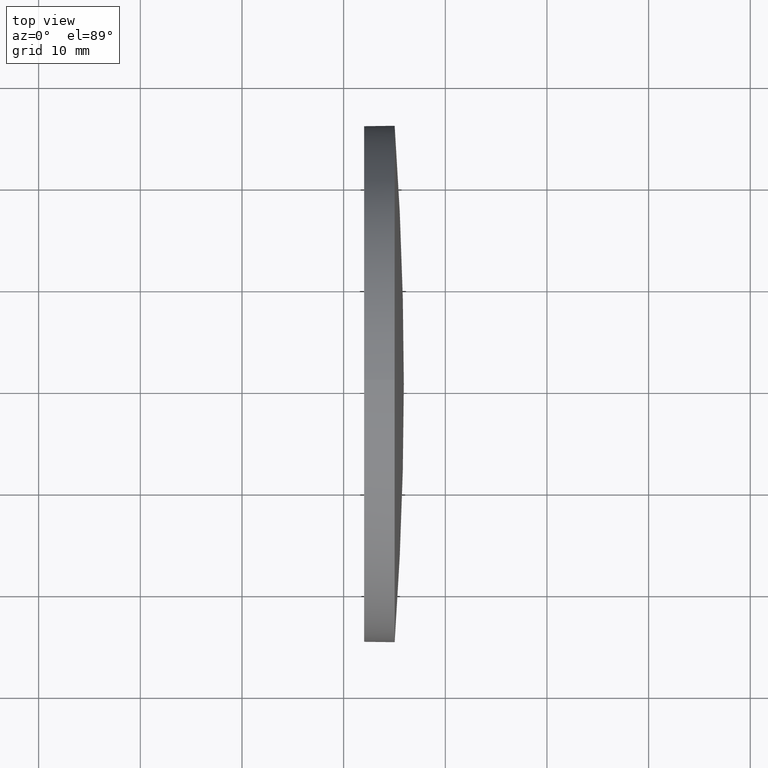
[diagram: clean part render]
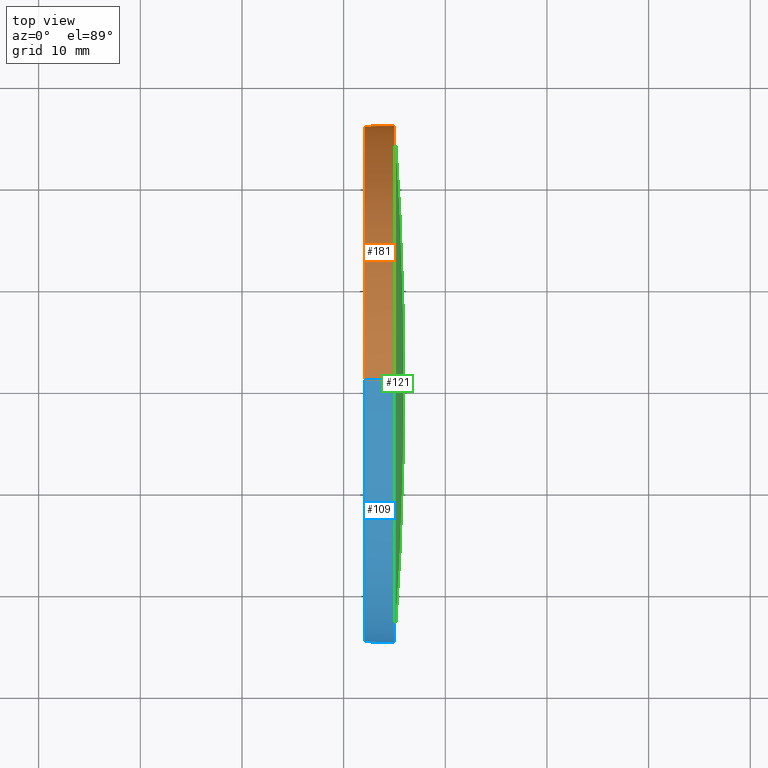
[diagram: same view with three faces highlighted in distinct colors, each labeled with its STEP entity id]
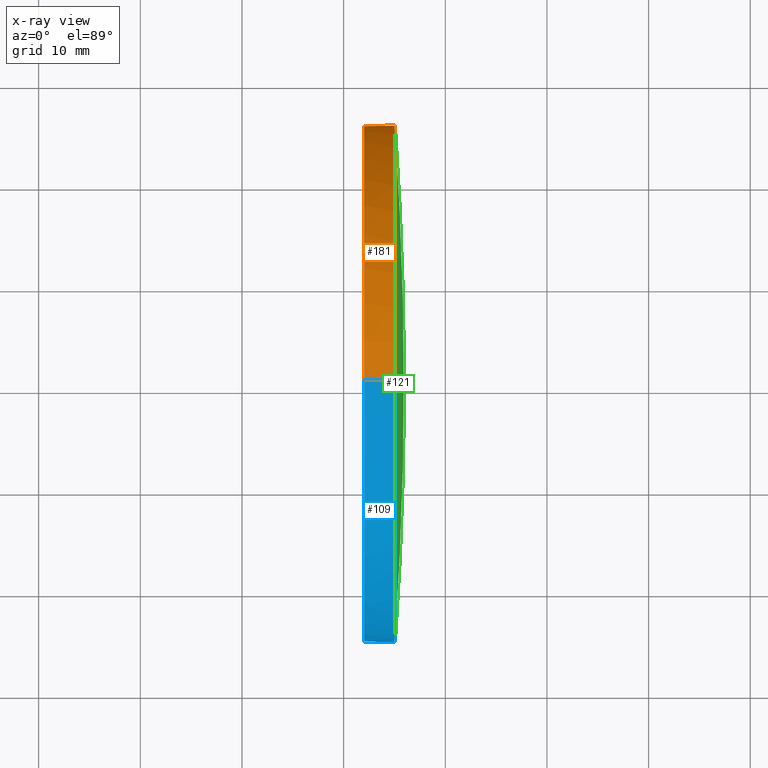
[diagram: x-ray of the same camera — body ghosted, the three highlighted faces saturated]
A machine part, top view with three faces highlighted in distinct colors.
The next image is the same camera in x-ray (body ghosted, the three faces saturated) — at least one of them is partly hidden behind the body in this view.
Their STEP definitions:

[orange] entity #181 — the highlighted cylindrical surface (partial cylindrical patch) has radius 25.4 mm, axis along (-1, -0, -0).
#2 = DIRECTION ( 'NONE',  ( -1.000000000000000000, -0.0000000000000000000, -0.0000000000000000000 ) ) ;
#5 = VERTEX_POINT ( 'NONE', #83 ) ;
#6 = AXIS2_PLACEMENT_3D ( 'NONE', #186, #120, #164 ) ;
#7 = CARTESIAN_POINT ( 'NONE',  ( 235.0208200792423800, 130.4671098528243900, 0.0000000000000000000 ) ) ;
#17 = VERTEX_POINT ( 'NONE', #159 ) ;
#22 = ORIENTED_EDGE ( 'NONE', *, *, #151, .F. ) ;
#24 = DIRECTION ( 'NONE',  ( 0.0000000000000000000, 0.0000000000000000000, 1.000000000000000000 ) ) ;
#25 = ORIENTED_EDGE ( 'NONE', *, *, #110, .F. ) ;
#33 = VERTEX_POINT ( 'NONE', #173 ) ;
#35 = CIRCLE ( 'NONE', #81, 25.40000000000000600 ) ;
#36 = VECTOR ( 'NONE', #2, 1000.000000000000000 ) ;
#38 = LINE ( 'NONE', #176, #97 ) ;
#41 = CARTESIAN_POINT ( 'NONE',  ( 235.0208200792423800, 130.4671098528243900, 25.40000000000000600 ) ) ;
#58 = CYLINDRICAL_SURFACE ( 'NONE', #6, 25.40000000000000600 ) ;
#63 = DIRECTION ( 'NONE',  ( 0.0000000000000000000, 0.0000000000000000000, 1.000000000000000000 ) ) ;
#66 = CARTESIAN_POINT ( 'NONE',  ( 232.0208200792423800, 130.4671098528243900, 0.0000000000000000000 ) ) ;
#68 = VERTEX_POINT ( 'NONE', #41 ) ;
#69 = EDGE_CURVE ( 'NONE', #68, #5, #88, .T. ) ;
#72 = AXIS2_PLACEMENT_3D ( 'NONE', #66, #177, #63 ) ;
#73 = AXIS2_PLACEMENT_3D ( 'NONE', #7, #172, #24 ) ;
#81 = AXIS2_PLACEMENT_3D ( 'NONE', #125, #156, #98 ) ;
#83 = CARTESIAN_POINT ( 'NONE',  ( 235.0208200792423800, 155.8671098528243700, 0.0000000000000000000 ) ) ;
#84 = DIRECTION ( 'NONE',  ( -1.000000000000000000, -0.0000000000000000000, -0.0000000000000000000 ) ) ;
#86 = CARTESIAN_POINT ( 'NONE',  ( 235.0208200792423800, 130.4671098528243900, -25.40000000000000600 ) ) ;
#88 = CIRCLE ( 'NONE', #73, 25.40000000000000600 ) ;
#92 = CIRCLE ( 'NONE', #72, 25.40000000000000600 ) ;
#96 = EDGE_CURVE ( 'NONE', #5, #165, #35, .T. ) ;
#97 = VECTOR ( 'NONE', #84, 1000.000000000000000 ) ;
#98 = DIRECTION ( 'NONE',  ( 0.0000000000000000000, 0.0000000000000000000, 1.000000000000000000 ) ) ;
#102 = FACE_OUTER_BOUND ( 'NONE', #153, .T. ) ;
#108 = ORIENTED_EDGE ( 'NONE', *, *, #96, .T. ) ;
#110 = EDGE_CURVE ( 'NONE', #68, #17, #38, .T. ) ;
#119 = LINE ( 'NONE', #162, #36 ) ;
#120 = DIRECTION ( 'NONE',  ( -1.000000000000000000, -0.0000000000000000000, -0.0000000000000000000 ) ) ;
#123 = ORIENTED_EDGE ( 'NONE', *, *, #160, .T. ) ;
#125 = CARTESIAN_POINT ( 'NONE',  ( 235.0208200792423800, 130.4671098528243900, 0.0000000000000000000 ) ) ;
#135 = ORIENTED_EDGE ( 'NONE', *, *, #69, .T. ) ;
#151 = EDGE_CURVE ( 'NONE', #17, #33, #92, .T. ) ;
#153 = EDGE_LOOP ( 'NONE', ( #108, #123, #22, #25, #135 ) ) ;
#156 = DIRECTION ( 'NONE',  ( -1.000000000000000000, -0.0000000000000000000, -0.0000000000000000000 ) ) ;
#159 = CARTESIAN_POINT ( 'NONE',  ( 232.0208200792423800, 130.4671098528243900, 25.40000000000000600 ) ) ;
#160 = EDGE_CURVE ( 'NONE', #165, #33, #119, .T. ) ;
#162 = CARTESIAN_POINT ( 'NONE',  ( 220.3307464569769000, 130.4671098528243900, -25.40000000000000600 ) ) ;
#164 = DIRECTION ( 'NONE',  ( 0.0000000000000000000, 0.0000000000000000000, 1.000000000000000000 ) ) ;
#165 = VERTEX_POINT ( 'NONE', #86 ) ;
#172 = DIRECTION ( 'NONE',  ( -1.000000000000000000, -0.0000000000000000000, -0.0000000000000000000 ) ) ;
#173 = CARTESIAN_POINT ( 'NONE',  ( 232.0208200792423800, 130.4671098528243900, -25.40000000000000600 ) ) ;
#176 = CARTESIAN_POINT ( 'NONE',  ( 220.3307464569769000, 130.4671098528243900, 25.40000000000000600 ) ) ;
#177 = DIRECTION ( 'NONE',  ( -1.000000000000000000, -0.0000000000000000000, -0.0000000000000000000 ) ) ;
#181 = ADVANCED_FACE ( 'NONE', ( #102 ), #58, .T. ) ;
#186 = CARTESIAN_POINT ( 'NONE',  ( 220.3307464569769000, 130.4671098528243900, 0.0000000000000000000 ) ) ;

[blue] entity #109 — the highlighted cylindrical surface (partial cylindrical patch) has radius 25.4 mm, axis along (-1, -0, -0).
#2 = DIRECTION ( 'NONE',  ( -1.000000000000000000, -0.0000000000000000000, -0.0000000000000000000 ) ) ;
#3 = EDGE_LOOP ( 'NONE', ( #39, #150, #8, #169, #4 ) ) ;
#4 = ORIENTED_EDGE ( 'NONE', *, *, #185, .F. ) ;
#8 = ORIENTED_EDGE ( 'NONE', *, *, #140, .T. ) ;
#11 = DIRECTION ( 'NONE',  ( 0.0000000000000000000, 0.0000000000000000000, 1.000000000000000000 ) ) ;
#17 = VERTEX_POINT ( 'NONE', #159 ) ;
#31 = FACE_OUTER_BOUND ( 'NONE', #3, .T. ) ;
#33 = VERTEX_POINT ( 'NONE', #173 ) ;
#36 = VECTOR ( 'NONE', #2, 1000.000000000000000 ) ;
#38 = LINE ( 'NONE', #176, #97 ) ;
#39 = ORIENTED_EDGE ( 'NONE', *, *, #160, .F. ) ;
#41 = CARTESIAN_POINT ( 'NONE',  ( 235.0208200792423800, 130.4671098528243900, 25.40000000000000600 ) ) ;
#46 = CARTESIAN_POINT ( 'NONE',  ( 235.0208200792423800, 130.4671098528243900, 0.0000000000000000000 ) ) ;
#54 = AXIS2_PLACEMENT_3D ( 'NONE', #65, #87, #11 ) ;
#59 = CARTESIAN_POINT ( 'NONE',  ( 220.3307464569769000, 130.4671098528243900, 0.0000000000000000000 ) ) ;
#65 = CARTESIAN_POINT ( 'NONE',  ( 235.0208200792423800, 130.4671098528243900, 0.0000000000000000000 ) ) ;
#67 = AXIS2_PLACEMENT_3D ( 'NONE', #46, #161, #148 ) ;
#68 = VERTEX_POINT ( 'NONE', #41 ) ;
#71 = DIRECTION ( 'NONE',  ( -1.000000000000000000, -0.0000000000000000000, -0.0000000000000000000 ) ) ;
#76 = DIRECTION ( 'NONE',  ( -1.000000000000000000, -0.0000000000000000000, -0.0000000000000000000 ) ) ;
#77 = DIRECTION ( 'NONE',  ( 0.0000000000000000000, 0.0000000000000000000, 1.000000000000000000 ) ) ;
#78 = AXIS2_PLACEMENT_3D ( 'NONE', #59, #71, #99 ) ;
#84 = DIRECTION ( 'NONE',  ( -1.000000000000000000, -0.0000000000000000000, -0.0000000000000000000 ) ) ;
#86 = CARTESIAN_POINT ( 'NONE',  ( 235.0208200792423800, 130.4671098528243900, -25.40000000000000600 ) ) ;
#87 = DIRECTION ( 'NONE',  ( -1.000000000000000000, -0.0000000000000000000, -0.0000000000000000000 ) ) ;
#93 = CYLINDRICAL_SURFACE ( 'NONE', #78, 25.40000000000000600 ) ;
#97 = VECTOR ( 'NONE', #84, 1000.000000000000000 ) ;
#99 = DIRECTION ( 'NONE',  ( 0.0000000000000000000, 0.0000000000000000000, 1.000000000000000000 ) ) ;
#109 = ADVANCED_FACE ( 'NONE', ( #31 ), #93, .T. ) ;
#110 = EDGE_CURVE ( 'NONE', #68, #17, #38, .T. ) ;
#119 = LINE ( 'NONE', #162, #36 ) ;
#122 = CIRCLE ( 'NONE', #168, 25.40000000000000600 ) ;
#124 = EDGE_CURVE ( 'NONE', #165, #174, #163, .T. ) ;
#129 = CARTESIAN_POINT ( 'NONE',  ( 232.0208200792423800, 130.4671098528243900, 0.0000000000000000000 ) ) ;
#133 = CARTESIAN_POINT ( 'NONE',  ( 235.0208200792423800, 105.0671098528242300, -3.110602869834272100E-015 ) ) ;
#140 = EDGE_CURVE ( 'NONE', #174, #68, #167, .T. ) ;
#148 = DIRECTION ( 'NONE',  ( 0.0000000000000000000, 0.0000000000000000000, 1.000000000000000000 ) ) ;
#150 = ORIENTED_EDGE ( 'NONE', *, *, #124, .T. ) ;
#159 = CARTESIAN_POINT ( 'NONE',  ( 232.0208200792423800, 130.4671098528243900, 25.40000000000000600 ) ) ;
#160 = EDGE_CURVE ( 'NONE', #165, #33, #119, .T. ) ;
#161 = DIRECTION ( 'NONE',  ( -1.000000000000000000, -0.0000000000000000000, -0.0000000000000000000 ) ) ;
#162 = CARTESIAN_POINT ( 'NONE',  ( 220.3307464569769000, 130.4671098528243900, -25.40000000000000600 ) ) ;
#163 = CIRCLE ( 'NONE', #54, 25.40000000000000600 ) ;
#165 = VERTEX_POINT ( 'NONE', #86 ) ;
#167 = CIRCLE ( 'NONE', #67, 25.40000000000000600 ) ;
#168 = AXIS2_PLACEMENT_3D ( 'NONE', #129, #76, #77 ) ;
#169 = ORIENTED_EDGE ( 'NONE', *, *, #110, .T. ) ;
#173 = CARTESIAN_POINT ( 'NONE',  ( 232.0208200792423800, 130.4671098528243900, -25.40000000000000600 ) ) ;
#174 = VERTEX_POINT ( 'NONE', #133 ) ;
#176 = CARTESIAN_POINT ( 'NONE',  ( 220.3307464569769000, 130.4671098528243900, 25.40000000000000600 ) ) ;
#185 = EDGE_CURVE ( 'NONE', #33, #17, #122, .T. ) ;

[green] entity #121 — the highlighted spherical surface has radius 358.872 mm.
#5 = VERTEX_POINT ( 'NONE', #83 ) ;
#7 = CARTESIAN_POINT ( 'NONE',  ( 235.0208200792423800, 130.4671098528243900, 0.0000000000000000000 ) ) ;
#9 = CARTESIAN_POINT ( 'NONE',  ( -122.9514021429779800, 130.4671098528241900, 0.0000000000000000000 ) ) ;
#16 = ORIENTED_EDGE ( 'NONE', *, *, #69, .F. ) ;
#24 = DIRECTION ( 'NONE',  ( 0.0000000000000000000, 0.0000000000000000000, 1.000000000000000000 ) ) ;
#29 = EDGE_CURVE ( 'NONE', #154, #5, #132, .T. ) ;
#41 = CARTESIAN_POINT ( 'NONE',  ( 235.0208200792423800, 130.4671098528243900, 25.40000000000000600 ) ) ;
#42 = DIRECTION ( 'NONE',  ( -0.0000000000000000000, 0.0000000000000000000, 1.000000000000000000 ) ) ;
#43 = AXIS2_PLACEMENT_3D ( 'NONE', #9, #70, #184 ) ;
#46 = CARTESIAN_POINT ( 'NONE',  ( 235.0208200792423800, 130.4671098528243900, 0.0000000000000000000 ) ) ;
#52 = ORIENTED_EDGE ( 'NONE', *, *, #140, .F. ) ;
#55 = EDGE_LOOP ( 'NONE', ( #61, #94, #16, #52 ) ) ;
#61 = ORIENTED_EDGE ( 'NONE', *, *, #64, .F. ) ;
#62 = DIRECTION ( 'NONE',  ( 0.0000000000000000000, 1.000000000000000000, 0.0000000000000000000 ) ) ;
#64 = EDGE_CURVE ( 'NONE', #154, #174, #75, .T. ) ;
#67 = AXIS2_PLACEMENT_3D ( 'NONE', #46, #161, #148 ) ;
#68 = VERTEX_POINT ( 'NONE', #41 ) ;
#69 = EDGE_CURVE ( 'NONE', #68, #5, #88, .T. ) ;
#70 = DIRECTION ( 'NONE',  ( 0.0000000000000000000, 1.224646799147353200E-016, -1.000000000000000000 ) ) ;
#73 = AXIS2_PLACEMENT_3D ( 'NONE', #7, #172, #24 ) ;
#75 = CIRCLE ( 'NONE', #43, 358.8722222222203900 ) ;
#82 = DIRECTION ( 'NONE',  ( -0.0000000000000000000, 0.0000000000000000000, -1.000000000000000000 ) ) ;
#83 = CARTESIAN_POINT ( 'NONE',  ( 235.0208200792423800, 155.8671098528243700, 0.0000000000000000000 ) ) ;
#85 = AXIS2_PLACEMENT_3D ( 'NONE', #145, #82, #62 ) ;
#88 = CIRCLE ( 'NONE', #73, 25.40000000000000600 ) ;
#94 = ORIENTED_EDGE ( 'NONE', *, *, #29, .T. ) ;
#106 = CARTESIAN_POINT ( 'NONE',  ( 235.9208200792423900, 130.4671098528242200, 0.0000000000000000000 ) ) ;
#111 = CARTESIAN_POINT ( 'NONE',  ( -122.9514021429779800, 130.4671098528241900, 0.0000000000000000000 ) ) ;
#121 = ADVANCED_FACE ( 'NONE', ( #183 ), #139, .T. ) ;
#132 = CIRCLE ( 'NONE', #137, 358.8722222222203900 ) ;
#133 = CARTESIAN_POINT ( 'NONE',  ( 235.0208200792423800, 105.0671098528242300, -3.110602869834272100E-015 ) ) ;
#137 = AXIS2_PLACEMENT_3D ( 'NONE', #111, #42, #142 ) ;
#139 = SPHERICAL_SURFACE ( 'NONE', #85, 358.8722222222203900 ) ;
#140 = EDGE_CURVE ( 'NONE', #174, #68, #167, .T. ) ;
#142 = DIRECTION ( 'NONE',  ( 1.000000000000000000, 0.0000000000000000000, 0.0000000000000000000 ) ) ;
#145 = CARTESIAN_POINT ( 'NONE',  ( -122.9514021429779800, 130.4671098528241900, 0.0000000000000000000 ) ) ;
#148 = DIRECTION ( 'NONE',  ( 0.0000000000000000000, 0.0000000000000000000, 1.000000000000000000 ) ) ;
#154 = VERTEX_POINT ( 'NONE', #106 ) ;
#161 = DIRECTION ( 'NONE',  ( -1.000000000000000000, -0.0000000000000000000, -0.0000000000000000000 ) ) ;
#167 = CIRCLE ( 'NONE', #67, 25.40000000000000600 ) ;
#172 = DIRECTION ( 'NONE',  ( -1.000000000000000000, -0.0000000000000000000, -0.0000000000000000000 ) ) ;
#174 = VERTEX_POINT ( 'NONE', #133 ) ;
#183 = FACE_OUTER_BOUND ( 'NONE', #55, .T. ) ;
#184 = DIRECTION ( 'NONE',  ( 0.0000000000000000000, 1.000000000000000000, 1.224646799147353000E-016 ) ) ;